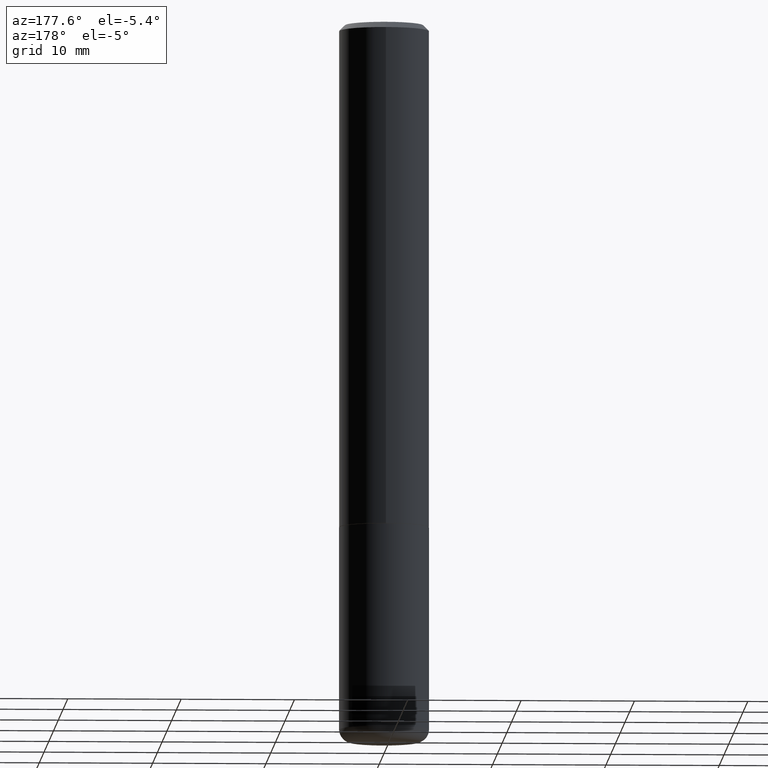
[diagram: clean part render]
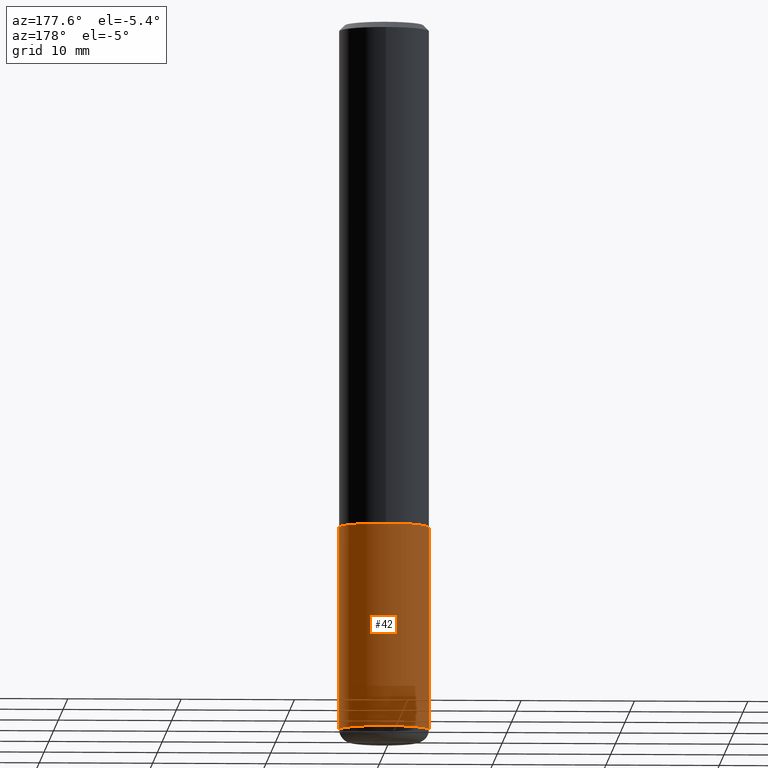
[diagram: same view with one face highlighted and labeled with its STEP entity id]
A machine part, auxiliary view. The second image highlights one B-rep face of the part: STEP entity #42.
In plain terms, the highlighted cylindrical surface (partial cylindrical patch) has radius 3.9688 mm, axis along (-0, 0, 1).
Its self-contained STEP definition (entity closure, byte-faithful):
#7 = DIRECTION ( 'NONE',  ( -2.445468806185136597E-29, 3.491481338843145583E-15, 1.000000000000000000 ) ) ;
#8 = ORIENTED_EDGE ( 'NONE', *, *, #235, .F. ) ;
#22 = VECTOR ( 'NONE', #366, 39.37007874015748143 ) ;
#25 = EDGE_CURVE ( 'NONE', #406, #47, #323, .T. ) ;
#42 = ADVANCED_FACE ( 'NONE', ( #230 ), #356, .T. ) ;
#47 = VERTEX_POINT ( 'NONE', #278 ) ;
#49 = CIRCLE ( 'NONE', #418, 0.1562500000000000000 ) ;
#99 = CARTESIAN_POINT ( 'NONE',  ( 0.1562500000000000000, -7.201180261363985422E-15, -1.750000000000000222 ) ) ;
#108 = DIRECTION ( 'NONE',  ( -2.445468806185136597E-29, 3.491481338843145583E-15, 1.000000000000000000 ) ) ;
#112 = EDGE_LOOP ( 'NONE', ( #412, #172, #396, #8 ) ) ;
#122 = CARTESIAN_POINT ( 'NONE',  ( 6.003625919184510659E-29, -8.571586686859923311E-15, -2.455000000000000071 ) ) ;
#129 = LINE ( 'NONE', #200, #224 ) ;
#134 = DIRECTION ( 'NONE',  ( 1.000000000000000000, -6.982962677686269077E-15, 0.000000000000000000 ) ) ;
#137 = AXIS2_PLACEMENT_3D ( 'NONE', #122, #108, #341 ) ;
#139 = CARTESIAN_POINT ( 'NONE',  ( -0.1562500000000000000, 1.110223024625156540E-15, -7.685836078523291160E-30 ) ) ;
#154 = DIRECTION ( 'NONE',  ( -2.445468806185136597E-29, 3.491481338843145583E-15, 1.000000000000000000 ) ) ;
#155 = CARTESIAN_POINT ( 'NONE',  ( 0.1562500000000000000, -9.662674605248401695E-15, -2.455000000000000071 ) ) ;
#162 = DIRECTION ( 'NONE',  ( -2.445468806185136877E-29, 3.491481338843145188E-15, 1.000000000000000000 ) ) ;
#172 = ORIENTED_EDGE ( 'NONE', *, *, #365, .T. ) ;
#192 = EDGE_CURVE ( 'NONE', #209, #310, #49, .T. ) ;
#200 = CARTESIAN_POINT ( 'NONE',  ( 0.1562500000000000000, -1.091087918388479174E-15, 7.619026212181150377E-30 ) ) ;
#209 = VERTEX_POINT ( 'NONE', #99 ) ;
#224 = VECTOR ( 'NONE', #162, 39.37007874015748143 ) ;
#230 = FACE_OUTER_BOUND ( 'NONE', #112, .T. ) ;
#235 = EDGE_CURVE ( 'NONE', #406, #209, #129, .T. ) ;
#244 = CARTESIAN_POINT ( 'NONE',  ( 0.000000000000000000, 0.000000000000000000, 0.000000000000000000 ) ) ;
#254 = DIRECTION ( 'NONE',  ( 1.000000000000000000, -6.982962677686266711E-15, 4.876176775795936353E-29 ) ) ;
#275 = CARTESIAN_POINT ( 'NONE',  ( -0.1562500000000000000, -6.230616490292557845E-15, -1.750000000000000222 ) ) ;
#278 = CARTESIAN_POINT ( 'NONE',  ( -0.1562500000000000000, -7.461363662234766770E-15, -2.455000000000000071 ) ) ;
#289 = AXIS2_PLACEMENT_3D ( 'NONE', #244, #154, #254 ) ;
#310 = VERTEX_POINT ( 'NONE', #275 ) ;
#321 = CARTESIAN_POINT ( 'NONE',  ( 4.279570410823989044E-29, -6.110092342975505460E-15, -1.750000000000000222 ) ) ;
#323 = CIRCLE ( 'NONE', #137, 0.1562500000000000000 ) ;
#335 = LINE ( 'NONE', #139, #22 ) ;
#341 = DIRECTION ( 'NONE',  ( 1.000000000000000000, -6.982962677686269077E-15, 0.000000000000000000 ) ) ;
#356 = CYLINDRICAL_SURFACE ( 'NONE', #289, 0.1562500000000000000 ) ;
#365 = EDGE_CURVE ( 'NONE', #47, #310, #335, .T. ) ;
#366 = DIRECTION ( 'NONE',  ( -2.445468806185136877E-29, 3.491481338843145188E-15, 1.000000000000000000 ) ) ;
#396 = ORIENTED_EDGE ( 'NONE', *, *, #192, .F. ) ;
#406 = VERTEX_POINT ( 'NONE', #155 ) ;
#412 = ORIENTED_EDGE ( 'NONE', *, *, #25, .T. ) ;
#418 = AXIS2_PLACEMENT_3D ( 'NONE', #321, #7, #134 ) ;